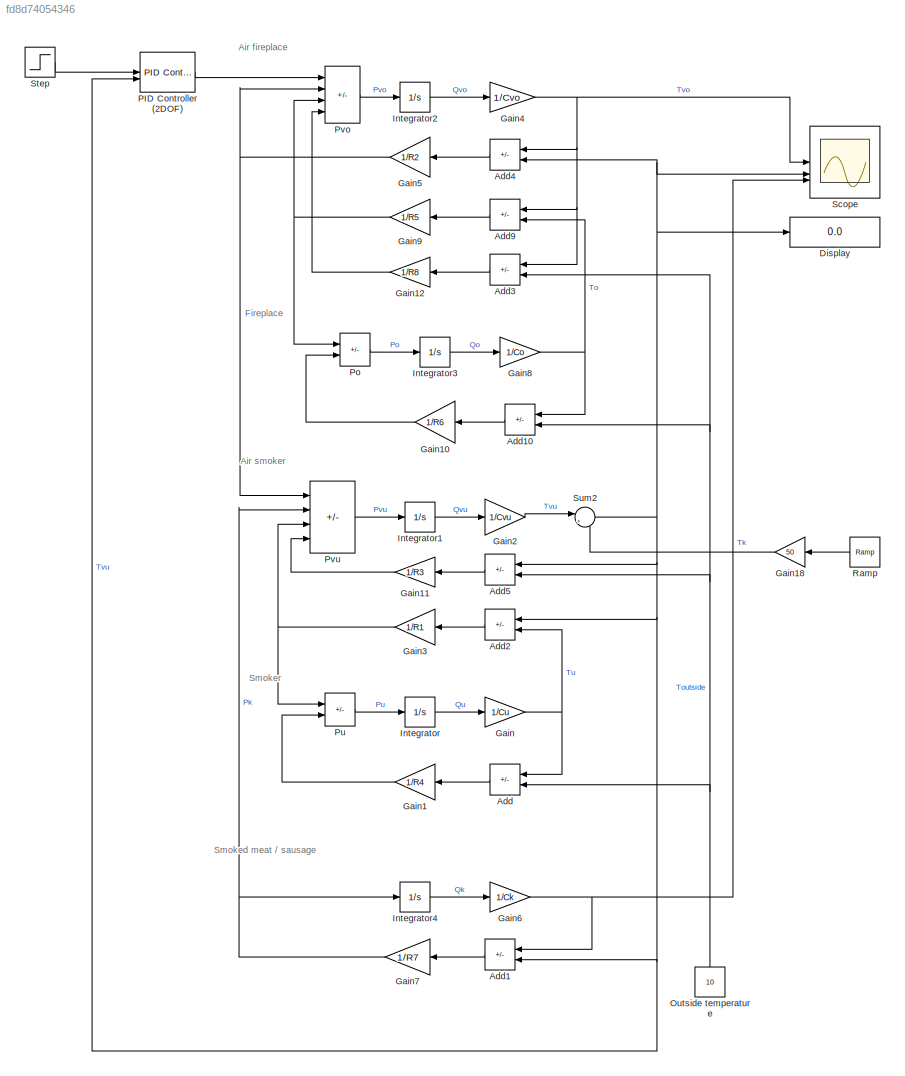
MODEL slx_fd8d74054346
KIND model
CONFIG AbsTol = auto
CONFIG EnableMultiTasking = off
CONFIG FixedStep = auto
CONFIG MaxStep = auto
CONFIG MinStep = auto
CONFIG RelTol = 1e-3
CONFIG SampleTimeConstraint = Unconstrained
CONFIG SolverName = VariableStepAuto
CONFIG StartTime = 0.0
CONFIG StopTime = 400
BLOCK [Sum] Add
  IconShape = rectangular
  Inputs = +-
  NameLocation = top
BLOCK [Sum] Add1
  IconShape = rectangular
  Inputs = -+
  NameLocation = top
BLOCK [Sum] Add10
  IconShape = rectangular
  Inputs = +-
  NameLocation = top
BLOCK [Sum] Add2
  IconShape = rectangular
  Inputs = +-
  NameLocation = top
BLOCK [Sum] Add3
  IconShape = rectangular
  Inputs = +-
  NameLocation = top
BLOCK [Sum] Add4
  IconShape = rectangular
  Inputs = +-
  NameLocation = top
BLOCK [Sum] Add5
  IconShape = rectangular
  Inputs = +-
  NameLocation = top
BLOCK [Sum] Add9
  IconShape = rectangular
  Inputs = +-
  NameLocation = top
BLOCK [Display] Display
  Decimation = 1
BLOCK [Gain] Gain
  Gain = 1/Cu
BLOCK [Gain] Gain1
  Gain = 1/R4
  NameLocation = top
BLOCK [Gain] Gain10
  Gain = 1/R6
  NameLocation = top
BLOCK [Gain] Gain11
  Gain = 1/R3
  NameLocation = top
BLOCK [Gain] Gain12
  Gain = 1/R8
  NameLocation = top
BLOCK [Gain] Gain18
  Gain = 50
  NameLocation = top
BLOCK [Gain] Gain2
  Gain = 1/Cvu
BLOCK [Gain] Gain3
  Gain = 1/R1
  NameLocation = top
BLOCK [Gain] Gain4
  Gain = 1/Cvo
BLOCK [Gain] Gain5
  Gain = 1/R2
  NameLocation = top
BLOCK [Gain] Gain6
  Gain = 1/Ck
BLOCK [Gain] Gain7
  Gain = 1/R7
  NameLocation = top
BLOCK [Gain] Gain8
  Gain = 1/Co
BLOCK [Gain] Gain9
  Gain = 1/R5
  NameLocation = top
BLOCK [Integrator] Integrator
BLOCK [Integrator] Integrator1
BLOCK [Integrator] Integrator2
BLOCK [Integrator] Integrator3
BLOCK [Integrator] Integrator4
BLOCK [Constant] Outside temperature
  NameLocation = right
  Value = 10
BLOCK [Reference] PID Controller (2DOF)  REF=slpidlib/PID Controller (2DOF)
  SourceBlock = slpidlib/PID Controller (2DOF)
  SourceType = PID 2dof
BLOCK [Sum] Po
  IconShape = rectangular
  Inputs = +-
BLOCK [Sum] Pu
  IconShape = rectangular
  Inputs = +-
BLOCK [Sum] Pvo
  IconShape = rectangular
  Inputs = +---
BLOCK [Sum] Pvu
  IconShape = rectangular
  Inputs = +---
BLOCK [Reference] Ramp  REF=simulink/Sources/Ramp
  NameLocation = top
  SourceBlock = simulink/Sources/Ramp
  SourceType = Ramp
BLOCK [Scope] Scope
  Floating = off
  NumInputPorts = 3
  ScopeSpecificationString = Simulink.scopes.TimeScopeBlockCfg('CurrentConfiguration', extmgr.ConfigurationSet(extmgr.Configuration('Core','General UI',true),extmgr.Configuration('Core','Source UI',true),extmgr.Configuration('Sources','WiredSimulink',true),extmgr.Configuration('Visuals','Time Domain',true,'SerializedDisplays',{struct('MinYLimReal','-18.20701','MaxYLimReal','97.71753','YLabelReal','','MinYLimMag','0.00000','Ma...<+1692ch>
BLOCK [Step] Step
  After = 70
  SampleTime = 0
BLOCK [Sum] Sum2
  Inputs = |+-
ANNOTATION (root): Air fireplace
ANNOTATION (root): Air smoker
ANNOTATION (root): Fireplace
ANNOTATION (root): Smoked meat / sausage
ANNOTATION (root): Smoker
LINE Add10:1 -> Gain10:1
LINE Add1:1 -> Gain7:1
LINE Add2:1 -> Gain3:1
LINE Add3:1 -> Gain12:1
LINE Add4:1 -> Gain5:1
LINE Add5:1 -> Gain11:1
LINE Add9:1 -> Gain9:1
LINE Add:1 -> Gain1:1
LINE Gain10:1 -> Po:2
LINE Gain11:1 -> Pvu:4
LINE Gain12:1 -> Pvo:4
LINE Gain18:1 -> Sum2:2
LINE Gain1:1 -> Pu:2
LINE Gain2:1 -> Sum2:1
NET Gain3:1 -> Pu:1, Pvu:3
NET Gain4:1 -> Add3:1, Add4:1, Add9:1, Scope:1
NET Gain5:1 -> Pvo:2, Pvu:1
NET Gain6:1 -> Add1:1, Scope:3
NET Gain7:1 -> Integrator4:1, Pvu:2
NET Gain8:1 -> Add10:1, Add9:2
NET Gain9:1 -> Po:1, Pvo:3
NET Gain:1 -> Add2:2, Add:1
LINE Integrator1:1 -> Gain2:1
LINE Integrator2:1 -> Gain4:1
LINE Integrator3:1 -> Gain8:1
LINE Integrator4:1 -> Gain6:1
LINE Integrator:1 -> Gain:1
NET Outside temperature:1 -> Add10:2, Add3:2, Add5:2, Add:2
LINE PID Controller (2DOF):1 -> Pvo:1
LINE Po:1 -> Integrator3:1
LINE Pu:1 -> Integrator:1
LINE Pvo:1 -> Integrator2:1
LINE Pvu:1 -> Integrator1:1
LINE Ramp:1 -> Gain18:1
LINE Step:1 -> PID Controller (2DOF):1
NET Sum2:1 -> Add1:2, Add2:1, Add4:2, Add5:1, Display:1, PID Controller (2DOF):2, Scope:2
note: NET lines group one-source signal fan-out (src -> all destinations, sorted); 1:1 wires keep LINE
